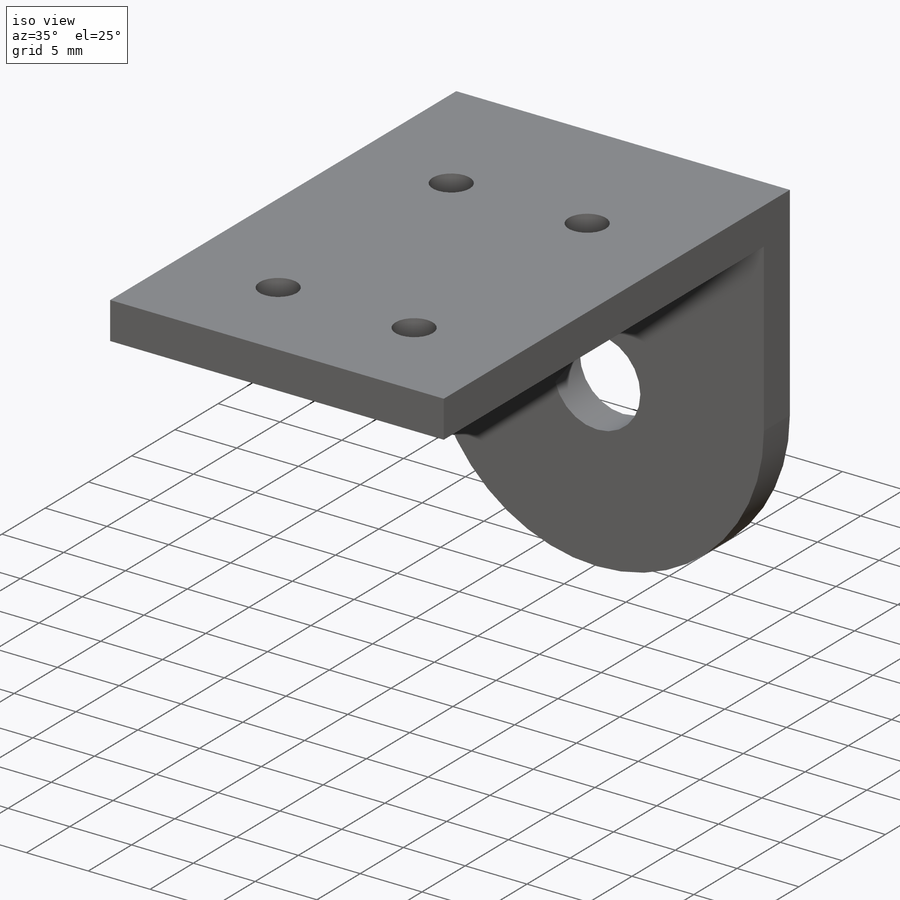
[diagram: iso view]
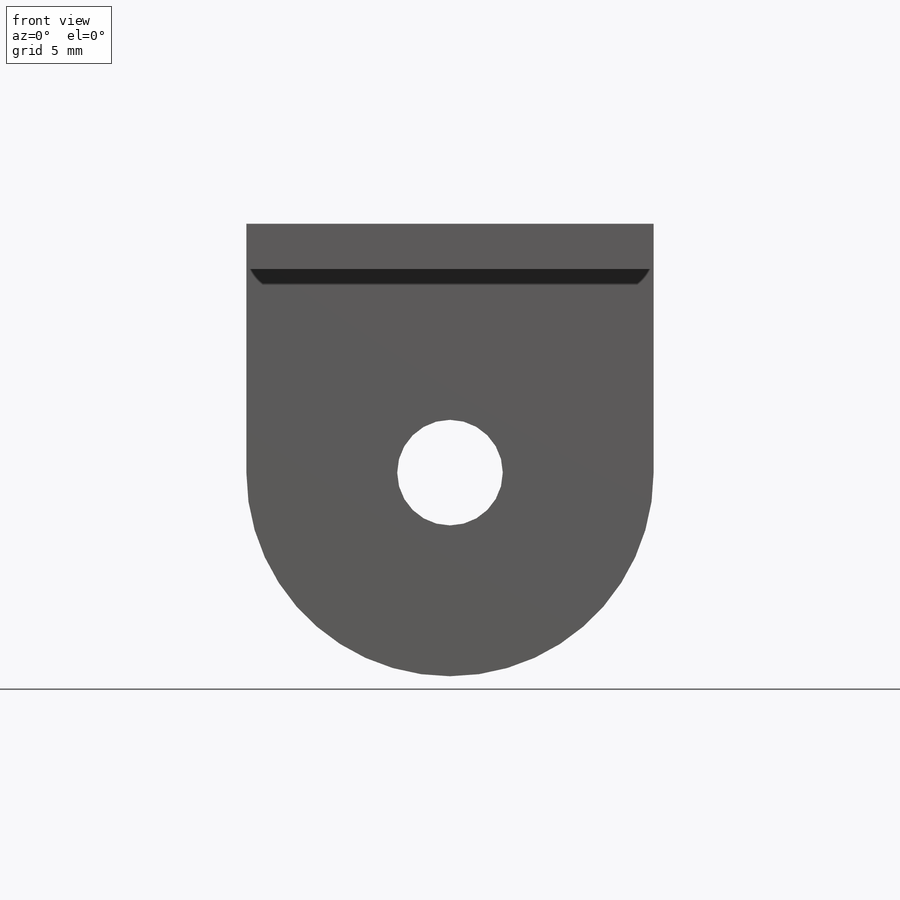
[diagram: front view]
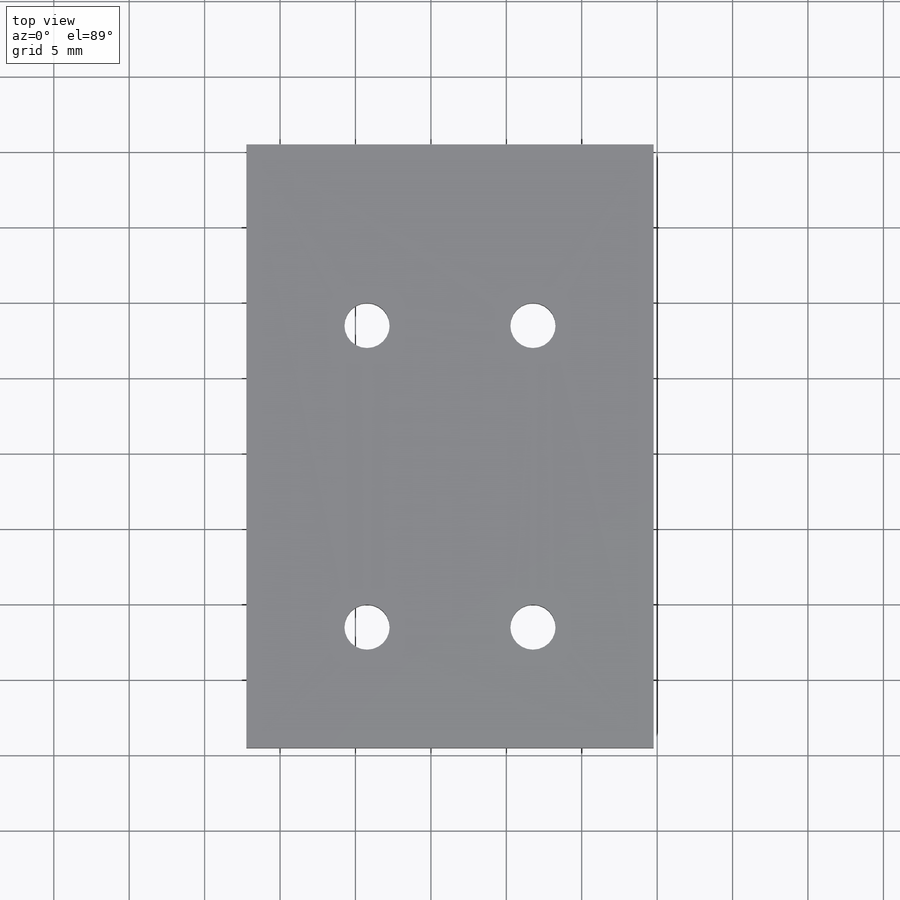
[diagram: top view]
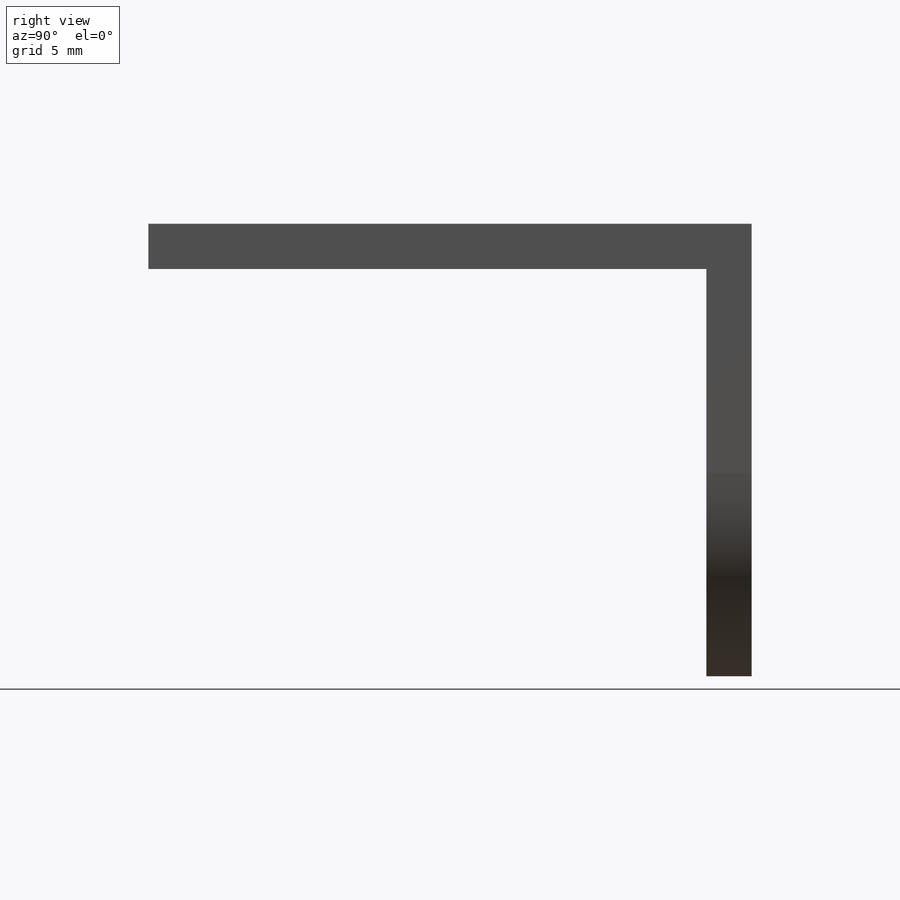
[diagram: right view]
SOLIDWORKS PART (.sldprt)
format: sldprt  version: not decoded by parser v0  size: 144,896 bytes
history: native  units: mm
features: plane x3, sketch x3, cut_extrude x2, material x1, extrude x1 (+10 scaffold rows collapsed)
feature tree (20):
  scaffold x10  (default folders/planes/origin — collapsed)
  material  "Material <not specified>"
  plane  "前视基准面"
  plane  "上视基准面"
  plane  "右视基准面"
  sketch  "Model"  dims[D1=16.5mm]
  extrude  "凸台-拉伸1"  Depth=40mm
  sketch  "草图3"  dims[D1=3.0mm D2=3.0mm D3=40.0mm]
  cut_extrude  "切除-拉伸1"  Depth=40mm
  sketch  "草图4"  dims[c1.D7=3.0mm c1.D8=3.0mm c1.D9=3.0mm c1.D10=3.0mm c1.D1=8.0mm c1.D2=8.0mm c1.D3=8.0mm c1.D4=8.0mm c1.D5=11.0mm c1.D6=20.0mm c2.D7=20.0mm]
  cut_extrude  "切除-拉伸2"  Depth=40mm
decode coverage: 6 of 6 modeling features carry decoded parameters
note: suppression state not decoded; provenance and decode notes live in map.json
